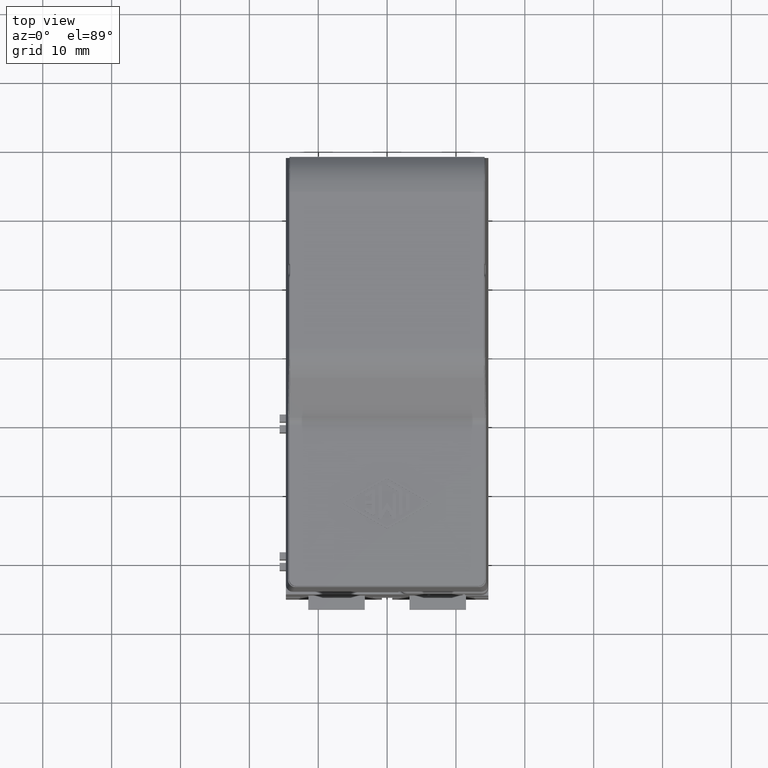
[diagram: clean part render]
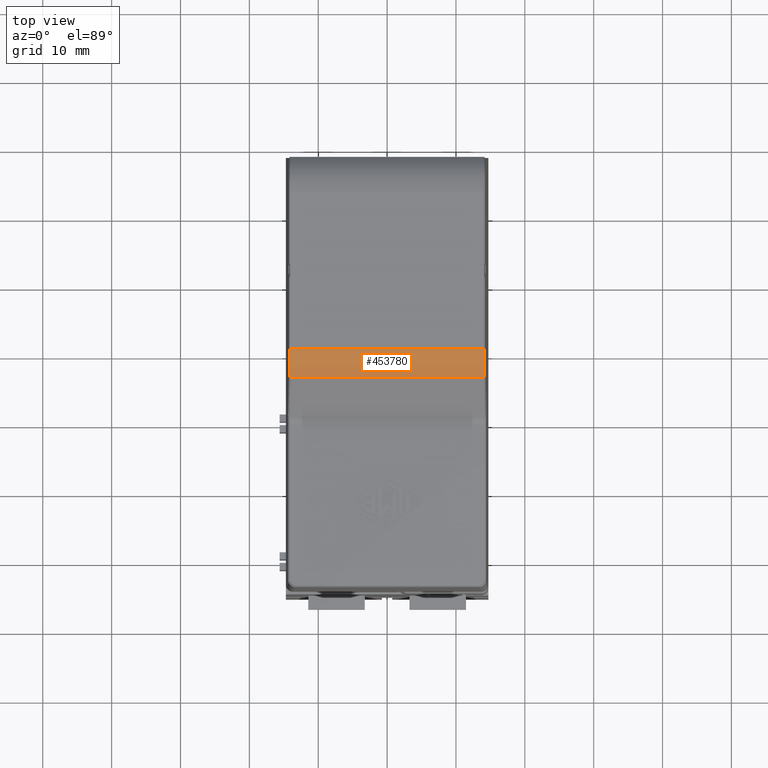
[diagram: same view with one face highlighted and labeled with its STEP entity id]
A machine part, top view. The second image highlights one B-rep face of the part: STEP entity #453780.
In plain terms, the highlighted cylindrical surface (partial cylindrical patch) has radius 6 mm, axis along (1, 0, 0).
Its self-contained STEP definition (entity closure, byte-faithful):
#320410=CARTESIAN_POINT('',(100.583574788337,55.9213203435667,
3.85735931288189));
#320420=VERTEX_POINT('',#320410);
#320450=CARTESIAN_POINT('',(100.509519219676,60.1639610306867,
8.10000000000044));
#320460=DIRECTION('',(0.99984769515639,-7.686219013481E-16,
0.0174524064373428));
#320470=DIRECTION('',(-0.0174524064373428,-1.73404571045806E-14,
0.99984769515639));
#320480=AXIS2_PLACEMENT_3D('',#320450,#320460,#320470);
#320490=ELLIPSE('',#320480,6.00091396826345,6.);
#320500=CARTESIAN_POINT('',(100.614249609246,60.1639610306859,
2.10000000000045));
#320510=VERTEX_POINT('',#320500);
#320520=EDGE_CURVE('',#320420,#320510,#320490,.T.);
#453250=CARTESIAN_POINT('',(128.805316390786,60.1639610306859,
2.10000000000128));
#453260=VERTEX_POINT('',#453250);
#453290=CARTESIAN_POINT('',(128.910046780355,60.1639610306867,
8.10000000000128));
#453300=DIRECTION('',(0.999847695156391,-5.85215804957901E-17,
-0.0174524064372835));
#453310=DIRECTION('',(0.0174524064372835,-1.73548949477612E-14,
0.999847695156391));
#453320=AXIS2_PLACEMENT_3D('',#453290,#453300,#453310);
#453330=ELLIPSE('',#453320,6.00091396826345,6.);
#453340=CARTESIAN_POINT('',(128.835991211694,55.9213203435667,
3.85735931288272));
#453350=VERTEX_POINT('',#453340);
#453360=EDGE_CURVE('',#453350,#453260,#453330,.T.);
#453570=CARTESIAN_POINT('',(111.28187741284,60.1639610306867,
8.10000000000076));
#453580=DIRECTION('',(-1.,3.6139734768051E-16,-2.96664172315122E-14));
#453590=DIRECTION('',(-3.61397347684672E-16,-1.,1.40301257963648E-13));
#453600=AXIS2_PLACEMENT_3D('',#453570,#453580,#453590);
#453610=CYLINDRICAL_SURFACE('',#453600,6.);
#453620=ORIENTED_EDGE('',*,*,#320520,.T.);
#453630=CARTESIAN_POINT('',(111.28187741284,55.9213203435667,
3.8573593128822));
#453640=DIRECTION('',(-1.,3.6139734768051E-16,-2.96664172315122E-14));
#453650=VECTOR('',#453640,1.);
#453660=LINE('',#453630,#453650);
#453670=EDGE_CURVE('',#453350,#320420,#453660,.T.);
#453680=ORIENTED_EDGE('',*,*,#453670,.T.);
#453690=ORIENTED_EDGE('',*,*,#453360,.F.);
#453700=CARTESIAN_POINT('',(111.28187741284,60.1639610306859,
2.10000000000076));
#453710=DIRECTION('',(-1.,3.6139734768051E-16,-2.96664172315122E-14));
#453720=VECTOR('',#453710,1.);
#453730=LINE('',#453700,#453720);
#453740=EDGE_CURVE('',#453260,#320510,#453730,.T.);
#453750=ORIENTED_EDGE('',*,*,#453740,.F.);
#453760=EDGE_LOOP('',(#453750,#453690,#453680,#453620));
#453770=FACE_OUTER_BOUND('',#453760,.T.);
#453780=ADVANCED_FACE('',(#453770),#453610,.T.);